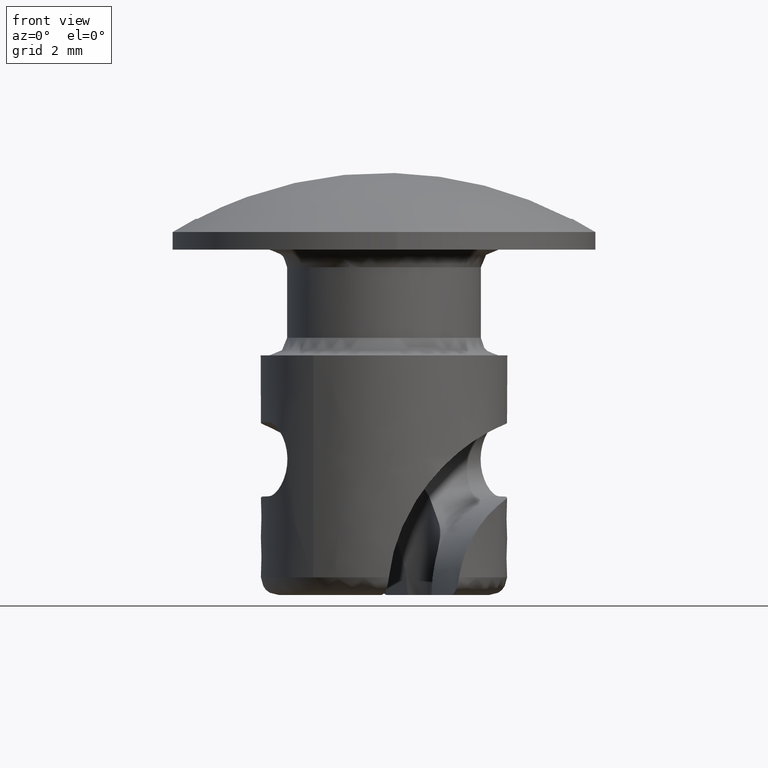
[diagram: clean part render]
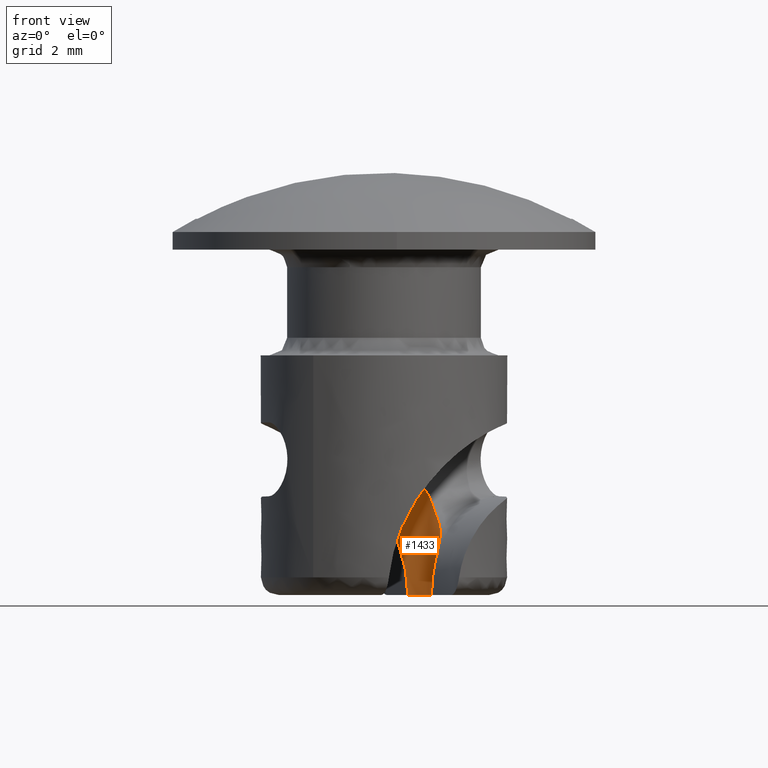
[diagram: same view with one face highlighted and labeled with its STEP entity id]
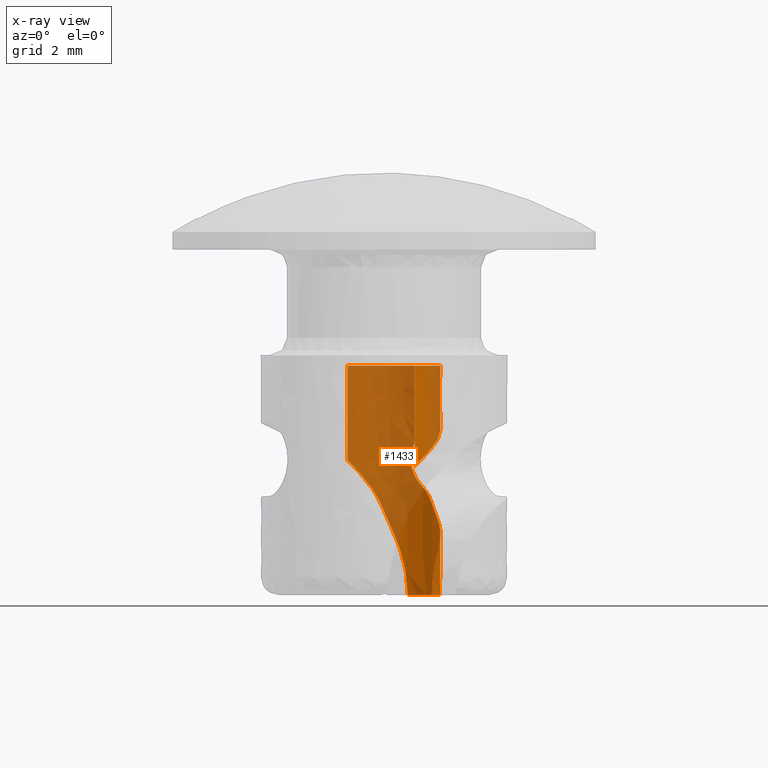
[diagram: x-ray of the same camera — body ghosted, the highlighted face saturated]
A machine part, front view. The second image highlights one B-rep face of the part: STEP entity #1433.
The next image is the same camera in x-ray: the body ghosted, the highlighted face saturated — about 69% of this face is hidden behind the body in this view.
In plain terms, the highlighted face is a freeform B-spline surface patch.
Its self-contained STEP definition (entity closure, byte-faithful):
#910=CARTESIAN_POINT('',(-1.033739476234352,1.221251375898311,-3.137506999999769));
#911=CARTESIAN_POINT('',(-1.002291030257574,1.247848999595607,-3.137506999999769));
#912=CARTESIAN_POINT('',(-0.970455508646392,1.273092593535540,-3.137506999999769));
#913=CARTESIAN_POINT('',(-0.937774442460767,1.297355270146278,-3.137506999999770));
#914=CARTESIAN_POINT('',(-0.904286128788619,1.320604671350618,-3.137506999999769));
#915=CARTESIAN_POINT('',(-0.505655497843827,1.578844599657854,-3.137506999999783));
#916=CARTESIAN_POINT('',(-0.068514503475990,1.686660695392748,-3.137506999999733));
#917=CARTESIAN_POINT('',(0.384210524660905,1.643015494338590,-3.137506999999802));
#918=CARTESIAN_POINT('',(0.790299493612346,1.455871201058595,-3.137506999999757));
#919=CARTESIAN_POINT('',(1.101517933703785,1.160470367565053,-3.137506999999769));
#920=CARTESIAN_POINT('',(1.156115709613701,1.108647653315913,-3.137506999999769));
#921=CARTESIAN_POINT('',(1.207793564334475,1.053492267087045,-3.137506999999768));
#922=CARTESIAN_POINT('',(1.256291436716140,0.995196521698047,-3.137506999999769));
#923=CARTESIAN_POINT('',(1.301360874932333,0.933972423555369,-3.137506999999769));
#924=CARTESIAN_POINT('',(1.455197241448809,0.696566355978591,-3.137506999999770));
#925=CARTESIAN_POINT('',(1.538536463296972,0.506558571350921,-3.137506999999770));
#926=CARTESIAN_POINT('',(1.590290090523801,0.306225197193794,-3.137506999999770));
#927=CARTESIAN_POINT('',(1.609558777662558,0.102004035841254,-3.137506999999767));
#928=CARTESIAN_POINT('',(1.596946236491125,-0.099891495949961,-3.137506999999769));
#929=CARTESIAN_POINT('',(1.578424120931457,-0.396405878625353,-3.137506999999768));
#930=CARTESIAN_POINT('',(1.491123925362530,-0.687895599905734,-3.137506999999773));
#931=CARTESIAN_POINT('',(1.336976364666963,-0.954684060132320,-3.137506999999761));
#932=CARTESIAN_POINT('',(1.124746301922740,-1.178056906478651,-3.137506999999773));
#933=CARTESIAN_POINT('',(0.869590663033496,-1.343265239044995,-3.137506999999769));
#934=CARTESIAN_POINT('',(-1.033657849896345,1.221179811367017,-4.508056443851906));
#935=CARTESIAN_POINT('',(-1.002216108901887,1.247799874367701,-4.508056443851906));
#936=CARTESIAN_POINT('',(-0.970391930797150,1.273070297591273,-4.508056443851906));
#937=CARTESIAN_POINT('',(-0.937712396760142,1.297354110662951,-4.508056443851905));
#938=CARTESIAN_POINT('',(-0.904234972860172,1.320631270029832,-4.508056443851908));
#939=CARTESIAN_POINT('',(-0.505531095276656,1.578931782660965,-4.508056443851893));
#940=CARTESIAN_POINT('',(-0.068511518411141,1.686693767421144,-4.508056443851935));
#941=CARTESIAN_POINT('',(0.384370293367707,1.642470415933063,-4.508056443851880));
#942=CARTESIAN_POINT('',(0.790291381098683,1.455413843000288,-4.508056443851917));
#943=CARTESIAN_POINT('',(1.101745636911038,1.160412587838441,-4.508056443851908));
#944=CARTESIAN_POINT('',(1.156386407481268,1.108654340457289,-4.508056443851908));
#945=CARTESIAN_POINT('',(1.208120456721390,1.053564500989404,-4.508056443851909));
#946=CARTESIAN_POINT('',(1.256643420612292,0.995275777266602,-4.508056443851908));
#947=CARTESIAN_POINT('',(1.301717792751842,0.934030923904008,-4.508056443851908));
#948=CARTESIAN_POINT('',(1.455695463793360,0.696581367790377,-4.508056443851906));
#949=CARTESIAN_POINT('',(1.539115296277995,0.506492962616733,-4.508056443851898));
#950=CARTESIAN_POINT('',(1.590991203398743,0.306089191290416,-4.508056443851907));
#951=CARTESIAN_POINT('',(1.610607524754409,0.101831910515222,-4.508056443851906));
#952=CARTESIAN_POINT('',(1.598103561127591,-0.100124385505679,-4.508056443851905));
#953=CARTESIAN_POINT('',(1.580193565852206,-0.396858770915423,-4.508056443851908));
#954=CARTESIAN_POINT('',(1.490925098721979,-0.687880292957275,-4.508056443851896));
#955=CARTESIAN_POINT('',(1.339844664968499,-0.956470627175908,-4.508056443851923));
#956=CARTESIAN_POINT('',(1.124680380647229,-1.178520007506690,-4.508056443851901));
#957=CARTESIAN_POINT('',(0.869134342994966,-1.342607834958571,-4.508056443851919));
#958=CARTESIAN_POINT('',(-1.033320730760142,1.220644292832976,-5.878605887704042));
#959=CARTESIAN_POINT('',(-1.001864904573230,1.247189698244363,-5.878605887704042));
#960=CARTESIAN_POINT('',(-0.970013684083514,1.272374711756520,-5.878605887704041));
#961=CARTESIAN_POINT('',(-0.937338086583678,1.296591741169187,-5.878605887704042));
#962=CARTESIAN_POINT('',(-0.903838250453008,1.319787419220855,-5.878605887704039));
#963=CARTESIAN_POINT('',(-0.505446560847817,1.577886449109023,-5.878605887704047));
#964=CARTESIAN_POINT('',(-0.068341055992206,1.686124970398120,-5.878605887704032));
#965=CARTESIAN_POINT('',(0.384337058175607,1.643373603164679,-5.878605887704051));
#966=CARTESIAN_POINT('',(0.790618558782833,1.456583812234540,-5.878605887704039));
#967=CARTESIAN_POINT('',(1.101124214065878,1.160444011984402,-5.878605887704041));
#968=CARTESIAN_POINT('',(1.155597745800365,1.108508964588855,-5.878605887704042));
#969=CARTESIAN_POINT('',(1.207123081817195,1.053233995913121,-5.878605887704042));
#970=CARTESIAN_POINT('',(1.255552396182083,0.994934362958839,-5.878605887704041));
#971=CARTESIAN_POINT('',(1.300616202304334,0.933773174245154,-5.878605887704042));
#972=CARTESIAN_POINT('',(1.454159330872482,0.696445579416696,-5.878605887704041));
#973=CARTESIAN_POINT('',(1.537295192199337,0.506651191114805,-5.878605887704047));
#974=CARTESIAN_POINT('',(1.588883159075931,0.306484940537876,-5.878605887704043));
#975=CARTESIAN_POINT('',(1.607302265570131,0.102416422944481,-5.878605887704042));
#976=CARTESIAN_POINT('',(1.593710797195043,-0.099045325157006,-5.878605887704042));
#977=CARTESIAN_POINT('',(1.573042291783623,-0.394710625211723,-5.878605887704036));
#978=CARTESIAN_POINT('',(1.486682628916567,-0.686053948950705,-5.878605887704050));
#979=CARTESIAN_POINT('',(1.327126814191588,-0.948248265862505,-5.878605887704024));
#980=CARTESIAN_POINT('',(1.120808007453514,-1.173125907162332,-5.878605887704044));
#981=CARTESIAN_POINT('',(0.867513122845300,-1.340204659479908,-5.878605887704031));
#982=CARTESIAN_POINT('',(-1.033460212697852,1.221039009399865,-7.249155331556180));
#983=CARTESIAN_POINT('',(-1.002023913969766,1.247640533522966,-7.249155331556180));
#984=CARTESIAN_POINT('',(-0.970201793241820,1.272870918618579,-7.249155331556180));
#985=CARTESIAN_POINT('',(-0.937531210435830,1.297162742278777,-7.249155331556180));
#986=CARTESIAN_POINT('',(-0.904058377536437,1.320373532661892,-7.249155331556180));
#987=CARTESIAN_POINT('',(-0.505533906409684,1.579038904036896,-7.249155331556180));
#988=CARTESIAN_POINT('',(-0.068654676900667,1.685295748879400,-7.249155331556180));
#989=CARTESIAN_POINT('',(0.384413483543271,1.643724478694144,-7.249155331556180));
#990=CARTESIAN_POINT('',(0.789795390165546,1.455054412361894,-7.249155331556179));
#991=CARTESIAN_POINT('',(1.101416232075708,1.160313925284058,-7.249155331556180));
#992=CARTESIAN_POINT('',(1.156067762613458,1.108550137324544,-7.249155331556180));
#993=CARTESIAN_POINT('',(1.207826762838209,1.053477542776792,-7.249155331556180));
#994=CARTESIAN_POINT('',(1.256323991986329,0.995190511158265,-7.249155331556181));
#995=CARTESIAN_POINT('',(1.301312602155030,0.933925091119580,-7.249155331556181));
#996=CARTESIAN_POINT('',(1.455170284307175,0.696623101868890,-7.249155331556180));
#997=CARTESIAN_POINT('',(1.538451457760099,0.506626963063938,-7.249155331556181));
#998=CARTESIAN_POINT('',(1.590090598060947,0.306312482433689,-7.249155331556179));
#999=CARTESIAN_POINT('',(1.609307087717574,0.102170141014249,-7.249155331556181));
#1000=CARTESIAN_POINT('',(1.596577216124385,-0.099619541313306,-7.249155331556181));
#1001=CARTESIAN_POINT('',(1.577894045163236,-0.395970117055778,-7.249155331556180));
#1002=CARTESIAN_POINT('',(1.490387931749507,-0.687215668665688,-7.249155331556180));
#1003=CARTESIAN_POINT('',(1.335955832270376,-0.953593636525123,-7.249155331556179));
#1004=CARTESIAN_POINT('',(1.123613218372571,-1.176478026639614,-7.249155331556179));
#1005=CARTESIAN_POINT('',(0.868390365521309,-1.341325478677619,-7.249155331556179));
#1006=CARTESIAN_POINT('',(-1.033480027463743,1.221094640165421,-7.441282906423957));
#1007=CARTESIAN_POINT('',(-1.002043190836762,1.247692931954506,-7.441282906423957));
#1008=CARTESIAN_POINT('',(-0.970220522530870,1.272944918910906,-7.441282906423957));
#1009=CARTESIAN_POINT('',(-0.937549375409183,1.297196911864057,-7.441282906423957));
#1010=CARTESIAN_POINT('',(-0.904076012155277,1.320466678731964,-7.441282906423957));
#1011=CARTESIAN_POINT('',(-0.505545279284605,1.578530878459925,-7.441282906423957));
#1012=CARTESIAN_POINT('',(-0.068633607999372,1.686967970560927,-7.441282906423958));
#1013=CARTESIAN_POINT('',(0.384295655106033,1.642472859986151,-7.441282906423953));
#1014=CARTESIAN_POINT('',(0.789998000632709,1.455658344622406,-7.441282906423957));
#1015=CARTESIAN_POINT('',(1.101480951835764,1.160361604588598,-7.441282906423956));
#1016=CARTESIAN_POINT('',(1.156095215282714,1.108561540598148,-7.441282906423956));
#1017=CARTESIAN_POINT('',(1.207768740193612,1.053411249005227,-7.441282906423956));
#1018=CARTESIAN_POINT('',(1.256262260497755,0.995129332090994,-7.441282906423956));
#1019=CARTESIAN_POINT('',(1.301368712224178,0.933949663632254,-7.441282906423957));
#1020=CARTESIAN_POINT('',(1.455180537153518,0.696573560349394,-7.441282906423957));
#1021=CARTESIAN_POINT('',(1.538497806852802,0.506583528957673,-7.441282906423965));
#1022=CARTESIAN_POINT('',(1.590110828802829,0.306294318515930,-7.441282906423943));
#1023=CARTESIAN_POINT('',(1.609408211446379,0.102119131847285,-7.441282906423963));
#1024=CARTESIAN_POINT('',(1.596685163830554,-0.099682479074296,-7.441282906423957));
#1025=CARTESIAN_POINT('',(1.578035468909381,-0.396061145334032,-7.441282906423958));
#1026=CARTESIAN_POINT('',(1.490560618253747,-0.687342656175472,-7.441282906423957));
#1027=CARTESIAN_POINT('',(1.336147701747236,-0.953771796246530,-7.441282906423957));
#1028=CARTESIAN_POINT('',(1.123745592648258,-1.176656981260942,-7.441282906423957));
#1029=CARTESIAN_POINT('',(0.868473230982765,-1.341498948474492,-7.441282906423957));
#1030=CARTESIAN_POINT('',(-1.033502369285501,1.221160824089604,-7.633410481291734));
#1031=CARTESIAN_POINT('',(-1.002064845966213,1.247760638931489,-7.633410481291734));
#1032=CARTESIAN_POINT('',(-0.970239538666943,1.273010480964497,-7.633410481291734));
#1033=CARTESIAN_POINT('',(-0.937570495388551,1.297269804705607,-7.633410481291734));
#1034=CARTESIAN_POINT('',(-0.904091542634652,1.320532004925405,-7.633410481291734));
#1035=CARTESIAN_POINT('',(-0.505595333200082,1.578706383944914,-7.633410481291738));
#1036=CARTESIAN_POINT('',(-0.068494538799220,1.686927924393600,-7.633410481291723));
#1037=CARTESIAN_POINT('',(0.384190284935481,1.642807493455150,-7.633410481291741));
#1038=CARTESIAN_POINT('',(0.790125639553905,1.455631550396314,-7.633410481291729));
#1039=CARTESIAN_POINT('',(1.101481764876164,1.160358354503190,-7.633410481291732));
#1040=CARTESIAN_POINT('',(1.156100152861045,1.108556977854591,-7.633410481291732));
#1041=CARTESIAN_POINT('',(1.207793456138509,1.053426387134848,-7.633410481291731));
#1042=CARTESIAN_POINT('',(1.256331173896746,0.995160275826397,-7.633410481291734));
#1043=CARTESIAN_POINT('',(1.301362027606567,0.933926434541144,-7.633410481291731));
#1044=CARTESIAN_POINT('',(1.455312236393991,0.696626989111631,-7.633410481291747));
#1045=CARTESIAN_POINT('',(1.538201981760517,0.506451997342014,-7.633410481291692));
#1046=CARTESIAN_POINT('',(1.590425267090631,0.306314759416393,-7.633410481291767));
#1047=CARTESIAN_POINT('',(1.609370521678895,0.102061953122435,-7.633410481291723));
#1048=CARTESIAN_POINT('',(1.596762325818226,-0.099747276250243,-7.633410481291735));
#1049=CARTESIAN_POINT('',(1.578141859459454,-0.396146995019336,-7.633410481291734));
#1050=CARTESIAN_POINT('',(1.490676718780654,-0.687469004827096,-7.633410481291735));
#1051=CARTESIAN_POINT('',(1.336297202648886,-0.953940668241708,-7.633410481291733));
#1052=CARTESIAN_POINT('',(1.123870882844340,-1.176849599702801,-7.633410481291733));
#1053=CARTESIAN_POINT('',(0.868581372194114,-1.341706076632546,-7.633410481291733));
#1054=CARTESIAN_POINT('',(-1.033527052160834,1.221224397112598,-7.825538056159510));
#1055=CARTESIAN_POINT('',(-1.002088420285674,1.247824195491333,-7.825538056159510));
#1056=CARTESIAN_POINT('',(-0.970262165535193,1.273073581340622,-7.825538056159511));
#1057=CARTESIAN_POINT('',(-0.937591712708313,1.297333647139336,-7.825538056159511));
#1058=CARTESIAN_POINT('',(-0.904112060371259,1.320594757145426,-7.825538056159511));
#1059=CARTESIAN_POINT('',(-0.505598329247333,1.578781124100723,-7.825538056159511));
#1060=CARTESIAN_POINT('',(-0.068498482344272,1.686967242237261,-7.825538056159510));
#1061=CARTESIAN_POINT('',(0.384203340009717,1.642803876985268,-7.825538056159509));
#1062=CARTESIAN_POINT('',(0.790169780073178,1.455704675746256,-7.825538056159508));
#1063=CARTESIAN_POINT('',(1.101495398385985,1.160368639193848,-7.825538056159508));
#1064=CARTESIAN_POINT('',(1.156104570263504,1.108557667178646,-7.825538056159508));
#1065=CARTESIAN_POINT('',(1.207793386980371,1.053417033165451,-7.825538056159508));
#1066=CARTESIAN_POINT('',(1.256300863536461,0.995132069112353,-7.825538056159509));
#1067=CARTESIAN_POINT('',(1.301373157541014,0.933922127800519,-7.825538056159510));
#1068=CARTESIAN_POINT('',(1.455207827712292,0.696542133191049,-7.825538056159511));
#1069=CARTESIAN_POINT('',(1.538471476611425,0.506553881510973,-7.825538056159501));
#1070=CARTESIAN_POINT('',(1.590268659716615,0.306241958746477,-7.825538056159516));
#1071=CARTESIAN_POINT('',(1.609474430519967,0.102041898894823,-7.825538056159513));
#1072=CARTESIAN_POINT('',(1.596817748958870,-0.099793001798618,-7.825538056159512));
#1073=CARTESIAN_POINT('',(1.578201511767926,-0.396211885368057,-7.825538056159512));
#1074=CARTESIAN_POINT('',(1.490801620161554,-0.687590804493188,-7.825538056159510));
#1075=CARTESIAN_POINT('',(1.336413910132607,-0.954079371392030,-7.825538056159510));
#1076=CARTESIAN_POINT('',(1.123999116485203,-1.177032954428933,-7.825538056159510));
#1077=CARTESIAN_POINT('',(0.868699320528067,-1.341906923544389,-7.825538056159510));
#1078=CARTESIAN_POINT('',(-1.033556757783267,1.221301532421196,-8.057352305875547));
#1079=CARTESIAN_POINT('',(-1.002116808943665,1.247901487893660,-8.057352305875547));
#1080=CARTESIAN_POINT('',(-0.970289203594110,1.273149656219615,-8.057352305875547));
#1081=CARTESIAN_POINT('',(-0.937617402031973,1.297412042858728,-8.057352305875547));
#1082=CARTESIAN_POINT('',(-0.904136350774019,1.320669895691681,-8.057352305875547));
#1083=CARTESIAN_POINT('',(-0.505606724907917,1.578892021733397,-8.057352305875543));
#1084=CARTESIAN_POINT('',(-0.068487862212998,1.686979150874881,-8.057352305875558));
#1085=CARTESIAN_POINT('',(0.384209352984317,1.642830612638202,-8.057352305875533));
#1086=CARTESIAN_POINT('',(0.790228724186458,1.455786759906318,-8.057352305875551));
#1087=CARTESIAN_POINT('',(1.101506449344455,1.160376631924590,-8.057352305875545));
#1088=CARTESIAN_POINT('',(1.156110006010365,1.108558208913985,-8.057352305875545));
#1089=CARTESIAN_POINT('',(1.207793940754604,1.053408563997390,-8.057352305875545));
#1090=CARTESIAN_POINT('',(1.256297200447144,0.995120750387712,-8.057352305875543));
#1091=CARTESIAN_POINT('',(1.301370140656044,0.933902655298596,-8.057352305875547));
#1092=CARTESIAN_POINT('',(1.455208579465357,0.696530127890172,-8.057352305875543));
#1093=CARTESIAN_POINT('',(1.538551150978679,0.506529171737444,-8.057352305875556));
#1094=CARTESIAN_POINT('',(1.590272948110348,0.306226575033715,-8.057352305875536));
#1095=CARTESIAN_POINT('',(1.609516960137658,0.102017636701260,-8.057352305875559));
#1096=CARTESIAN_POINT('',(1.596886364416321,-0.099852547777938,-8.057352305875547));
#1097=CARTESIAN_POINT('',(1.578181050303182,-0.396284169728073,-8.057352305875563));
#1098=CARTESIAN_POINT('',(1.491054474769199,-0.687741492276609,-8.057352305875529));
#1099=CARTESIAN_POINT('',(1.336496524213904,-0.954253118943420,-8.057352305875556));
#1100=CARTESIAN_POINT('',(1.124169949346802,-1.177250678682559,-8.057352305875543));
#1101=CARTESIAN_POINT('',(0.868841069136211,-1.342149819595127,-8.057352305875547));
#1102=CARTESIAN_POINT('',(-1.033589883631324,1.221372077659560,-8.289166555591581));
#1103=CARTESIAN_POINT('',(-1.002148620112965,1.247971101750242,-8.289166555591581));
#1104=CARTESIAN_POINT('',(-0.970319574784198,1.273215184581724,-8.289166555591581));
#1105=CARTESIAN_POINT('',(-0.937646655483791,1.297481134423039,-8.289166555591583));
#1106=CARTESIAN_POINT('',(-0.904163993590256,1.320730114881333,-8.289166555591581));
#1107=CARTESIAN_POINT('',(-0.505622467993138,1.579009399562474,-8.289166555591585));
#1108=CARTESIAN_POINT('',(-0.068478165867498,1.686778990193849,-8.289166555591580));
#1109=CARTESIAN_POINT('',(0.384193939683595,1.642998514887941,-8.289166555591585));
#1110=CARTESIAN_POINT('',(0.790256944719172,1.455763073594393,-8.289166555591580));
#1111=CARTESIAN_POINT('',(1.101512162453745,1.160382755770092,-8.289166555591581));
#1112=CARTESIAN_POINT('',(1.156114356819373,1.108560445888351,-8.289166555591581));
#1113=CARTESIAN_POINT('',(1.207797120056852,1.053408326275438,-8.289166555591581));
#1114=CARTESIAN_POINT('',(1.256298581654498,0.995113908612959,-8.289166555591583));
#1115=CARTESIAN_POINT('',(1.301371757017144,0.933896363978542,-8.289166555591583));
#1116=CARTESIAN_POINT('',(1.455210221727137,0.696500139857294,-8.289166555591585));
#1117=CARTESIAN_POINT('',(1.538549970649293,0.506521970705015,-8.289166555591576));
#1118=CARTESIAN_POINT('',(1.590288039622394,0.306187134434886,-8.289166555591594));
#1119=CARTESIAN_POINT('',(1.609571630073367,0.101994815120540,-8.289166555591576));
#1120=CARTESIAN_POINT('',(1.596907938487904,-0.099871344687006,-8.289166555591583));
#1121=CARTESIAN_POINT('',(1.578384430518723,-0.396336379636149,-8.289166555591574));
#1122=CARTESIAN_POINT('',(1.491049732746661,-0.687889400580056,-8.289166555591587));
#1123=CARTESIAN_POINT('',(1.336626401250453,-0.954319600096499,-8.289166555591580));
#1124=CARTESIAN_POINT('',(1.124315050876199,-1.177482269038382,-8.289166555591583));
#1125=CARTESIAN_POINT('',(0.868995972417152,-1.342384424002534,-8.289166555591581));
#1126=CARTESIAN_POINT('',(-1.033624417383684,1.221430892912782,-8.520980805307620));
#1127=CARTESIAN_POINT('',(-1.002181944193127,1.248027735891266,-8.520980805307620));
#1128=CARTESIAN_POINT('',(-0.970351759133121,1.273270587928998,-8.520980805307620));
#1129=CARTESIAN_POINT('',(-0.937677557409445,1.297532810482919,-8.520980805307620));
#1130=CARTESIAN_POINT('',(-0.904193875235029,1.320781985985872,-8.520980805307620));
#1131=CARTESIAN_POINT('',(-0.505637486126515,1.579011897859529,-8.520980805307621));
#1132=CARTESIAN_POINT('',(-0.068489869315854,1.686846689913340,-8.520980805307620));
#1133=CARTESIAN_POINT('',(0.384203381037347,1.642925759928811,-8.520980805307620));
#1134=CARTESIAN_POINT('',(0.790264843561123,1.455839482801159,-8.520980805307618));
#1135=CARTESIAN_POINT('',(1.101512273935439,1.160398947827554,-8.520980805307618));
#1136=CARTESIAN_POINT('',(1.156113271231656,1.108574344970349,-8.520980805307618));
#1137=CARTESIAN_POINT('',(1.207794692585164,1.053419056987812,-8.520980805307618));
#1138=CARTESIAN_POINT('',(1.256295575590683,0.995122980248744,-8.520980805307621));
#1139=CARTESIAN_POINT('',(1.301367760617121,0.933901561489267,-8.520980805307621));
#1140=CARTESIAN_POINT('',(1.455206620053330,0.696502158066980,-8.520980805307621));
#1141=CARTESIAN_POINT('',(1.538547414146047,0.506508835718335,-8.520980805307621));
#1142=CARTESIAN_POINT('',(1.590297261706392,0.306191425525457,-8.520980805307623));
#1143=CARTESIAN_POINT('',(1.609556641973648,0.101987264446457,-8.520980805307621));
#1144=CARTESIAN_POINT('',(1.596917249189347,-0.099886558698826,-8.520980805307621));
#1145=CARTESIAN_POINT('',(1.578417975453687,-0.396385372172035,-8.520980805307616));
#1146=CARTESIAN_POINT('',(1.490952595593727,-0.687790118043466,-8.520980805307628));
#1147=CARTESIAN_POINT('',(1.336803473063133,-0.954521860600834,-8.520980805307612));
#1148=CARTESIAN_POINT('',(1.124394230184238,-1.177591957677104,-8.520980805307625));
#1149=CARTESIAN_POINT('',(0.869121040086709,-1.342563869327385,-8.520980805307621));
#1150=CARTESIAN_POINT('',(-1.033697115175358,1.221554628448015,-9.002843703538343));
#1151=CARTESIAN_POINT('',(-1.002252104572134,1.248147332883286,-9.002843703538343));
#1152=CARTESIAN_POINT('',(-0.970419905116283,1.273385466914617,-9.002843703538343));
#1153=CARTESIAN_POINT('',(-0.937742476163521,1.297644152926377,-9.002843703538341));
#1154=CARTESIAN_POINT('',(-0.904257598646523,1.320887741446029,-9.002843703538343));
#1155=CARTESIAN_POINT('',(-0.505661833022593,1.579078573185975,-9.002843703538341));
#1156=CARTESIAN_POINT('',(-0.068547530392140,1.686805450132246,-9.002843703538348));
#1157=CARTESIAN_POINT('',(0.384267410970424,1.642991939283475,-9.002843703538330));
#1158=CARTESIAN_POINT('',(0.790246433306811,1.455873037494528,-9.002843703538339));
#1159=CARTESIAN_POINT('',(1.101504399547237,1.160443671183803,-9.002843703538341));
#1160=CARTESIAN_POINT('',(1.156104197195250,1.108613485792002,-9.002843703538341));
#1161=CARTESIAN_POINT('',(1.207784565489768,1.053450347991283,-9.002843703538339));
#1162=CARTESIAN_POINT('',(1.256284865031876,0.995145151358178,-9.002843703538343));
#1163=CARTESIAN_POINT('',(1.301356403824933,0.933917991760102,-9.002843703538343));
#1164=CARTESIAN_POINT('',(1.455192742693800,0.696490394273804,-9.002843703538350));
#1165=CARTESIAN_POINT('',(1.538537875083994,0.506492335392084,-9.002843703538332));
#1166=CARTESIAN_POINT('',(1.590292575665770,0.306180981562093,-9.002843703538352));
#1167=CARTESIAN_POINT('',(1.609562250655128,0.101964366261393,-9.002843703538346));
#1168=CARTESIAN_POINT('',(1.596947096746939,-0.099917584139124,-9.002843703538344));
#1169=CARTESIAN_POINT('',(1.578386980974471,-0.396427233652578,-9.002843703538362));
#1170=CARTESIAN_POINT('',(1.491083907691982,-0.687813179060015,-9.002843703538286));
#1171=CARTESIAN_POINT('',(1.336927478504931,-0.954752560943106,-9.002843703538423));
#1172=CARTESIAN_POINT('',(1.124619758400334,-1.177836639376434,-9.002843703538318));
#1173=CARTESIAN_POINT('',(0.869383709478124,-1.342933171743165,-9.002843703538344));
#1174=CARTESIAN_POINT('',(-1.033769695567772,1.221631501155459,-9.484706601769060));
#1175=CARTESIAN_POINT('',(-1.002322275503844,1.248218746885767,-9.484706601769060));
#1176=CARTESIAN_POINT('',(-0.970487499437462,1.273450401516809,-9.484706601769060));
#1177=CARTESIAN_POINT('',(-0.937807872447767,1.297705082827563,-9.484706601769060));
#1178=CARTESIAN_POINT('',(-0.904320153653026,1.320940701476531,-9.484706601769060));
#1179=CARTESIAN_POINT('',(-0.505699377027952,1.579091334110150,-9.484706601769064));
#1180=CARTESIAN_POINT('',(-0.068537538085577,1.686678651168910,-9.484706601769052));
#1181=CARTESIAN_POINT('',(0.384265776046590,1.642917771733518,-9.484706601769068));
#1182=CARTESIAN_POINT('',(0.790316491734057,1.456007700004868,-9.484706601769059));
#1183=CARTESIAN_POINT('',(1.101497703029222,1.160495225950831,-9.484706601769064));
#1184=CARTESIAN_POINT('',(1.156091988288745,1.108668640911162,-9.484706601769066));
#1185=CARTESIAN_POINT('',(1.207767950261052,1.053511489259980,-9.484706601769068));
#1186=CARTESIAN_POINT('',(1.256263940768498,0.995214786384423,-9.484706601769075));
#1187=CARTESIAN_POINT('',(1.301333331701977,0.933987782882452,-9.484706601769075));
#1188=CARTESIAN_POINT('',(1.455165071320302,0.696587008455613,-9.484706601769062));
#1189=CARTESIAN_POINT('',(1.538502859603669,0.506578432141452,-9.484706601769094));
#1190=CARTESIAN_POINT('',(1.590246312131167,0.306240438912137,-9.484706601769055));
#1191=CARTESIAN_POINT('',(1.609506778998079,0.102029682376926,-9.484706601769064));
#1192=CARTESIAN_POINT('',(1.596881629061389,-0.099858223149469,-9.484706601769066));
#1193=CARTESIAN_POINT('',(1.578352286690912,-0.396352449417312,-9.484706601769062));
#1194=CARTESIAN_POINT('',(1.491039884300986,-0.687853684935053,-9.484706601769094));
#1195=CARTESIAN_POINT('',(1.336825008939699,-0.954550730608989,-9.484706601769030));
#1196=CARTESIAN_POINT('',(1.124655829952594,-1.177941076216510,-9.484706601769080));
#1197=CARTESIAN_POINT('',(0.869461137574699,-1.343051809034620,-9.484706601769064));
#1198=CARTESIAN_POINT('',(-1.033827541973282,1.221730854845431,-9.966569499999782));
#1199=CARTESIAN_POINT('',(-1.002378227080948,1.248314696223563,-9.966569499999782));
#1200=CARTESIAN_POINT('',(-0.970541027761984,1.273543884929457,-9.966569499999782));
#1201=CARTESIAN_POINT('',(-0.937860373852133,1.297793889008691,-9.966569499999782));
#1202=CARTESIAN_POINT('',(-0.904369464339057,1.321028484138045,-9.966569499999782));
#1203=CARTESIAN_POINT('',(-0.505740743650981,1.579120774604259,-9.966569499999777));
#1204=CARTESIAN_POINT('',(-0.068509751107705,1.686761596604975,-9.966569499999796));
#1205=CARTESIAN_POINT('',(0.384204340595255,1.642884301267757,-9.966569499999757));
#1206=CARTESIAN_POINT('',(0.790283817343350,1.455897606029601,-9.966569499999798));
#1207=CARTESIAN_POINT('',(1.101502086120677,1.160472390088810,-9.966569499999782));
#1208=CARTESIAN_POINT('',(1.156098781931035,1.108651217472932,-9.966569499999782));
#1209=CARTESIAN_POINT('',(1.207775246407540,1.053498211430125,-9.966569499999785));
#1210=CARTESIAN_POINT('',(1.256271070133397,0.995203629711435,-9.966569499999785));
#1211=CARTESIAN_POINT('',(1.301338703100959,0.933982380145189,-9.966569499999793));
#1212=CARTESIAN_POINT('',(1.455164013760803,0.696582994243871,-9.966569499999787));
#1213=CARTESIAN_POINT('',(1.538498581529576,0.506582627898205,-9.966569499999807));
#1214=CARTESIAN_POINT('',(1.590240687390743,0.306255461017883,-9.966569499999778));
#1215=CARTESIAN_POINT('',(1.609500760527072,0.102042054001040,-9.966569499999791));
#1216=CARTESIAN_POINT('',(1.596877227800341,-0.099844452550289,-9.966569499999791));
#1217=CARTESIAN_POINT('',(1.578337767794602,-0.396356807837455,-9.966569499999800));
#1218=CARTESIAN_POINT('',(1.491027033897035,-0.687779648046267,-9.966569499999769));
#1219=CARTESIAN_POINT('',(1.336858040753995,-0.954642160152640,-9.966569499999798));
#1220=CARTESIAN_POINT('',(1.124649092599827,-1.177907403383225,-9.966569499999782));
#1221=CARTESIAN_POINT('',(0.869515237426651,-1.343113780243607,-9.966569499999785));
#1222=B_SPLINE_SURFACE_WITH_KNOTS('',5,3,((#910,#934,#958,#982,#1006,#1030,#1054,#1078,#1102,#1126,#1150,#1174,#1198),(#911,#935,#959,#983,#1007,#1031,#1055,#1079,#1103,#1127,#1151,#1175,#1199),(#912,#936,#960,#984,#1008,#1032,#1056,#1080,#1104,#1128,#1152,#1176,#1200),(#913,#937,#961,#985,#1009,#1033,#1057,#1081,#1105,#1129,#1153,#1177,#1201),(#914,#938,#962,#986,#1010,#1034,#1058,#1082,#1106,#1130,#1154,#1178,#1202),(#915,#939,#963,#987,#1011,#1035,#1059,#1083,#1107,#1131,#1155,#1179,#1203),(#916,#940,#964,#988,#1012,#1036,#1060,#1084,#1108,#1132,#1156,#1180,#1204),(#917,#941,#965,#989,#1013,#1037,#1061,#1085,#1109,#1133,#1157,#1181,#1205),(#918,#942,#966,#990,#1014,#1038,#1062,#1086,#1110,#1134,#1158,#1182,#1206),(#919,#943,#967,#991,#1015,#1039,#1063,#1087,#1111,#1135,#1159,#1183,#1207),(#920,#944,#968,#992,#1016,#1040,#1064,#1088,#1112,#1136,#1160,#1184,#1208),(#921,#945,#969,#993,#1017,#1041,#1065,#1089,#1113,#1137,#1161,#1185,#1209),(#922,#946,#970,#994,#1018,#1042,#1066,#1090,#1114,#1138,#1162,#1186,#1210),(#923,#947,#971,#995,#1019,#1043,#1067,#1091,#1115,#1139,#1163,#1187,#1211),(#924,#948,#972,#996,#1020,#1044,#1068,#1092,#1116,#1140,#1164,#1188,#1212),(#925,#949,#973,#997,#1021,#1045,#1069,#1093,#1117,#1141,#1165,#1189,#1213),(#926,#950,#974,#998,#1022,#1046,#1070,#1094,#1118,#1142,#1166,#1190,#1214),(#927,#951,#975,#999,#1023,#1047,#1071,#1095,#1119,#1143,#1167,#1191,#1215),(#928,#952,#976,#1000,#1024,#1048,#1072,#1096,#1120,#1144,#1168,#1192,#1216),(#929,#953,#977,#1001,#1025,#1049,#1073,#1097,#1121,#1145,#1169,#1193,#1217),(#930,#954,#978,#1002,#1026,#1050,#1074,#1098,#1122,#1146,#1170,#1194,#1218),(#931,#955,#979,#1003,#1027,#1051,#1075,#1099,#1123,#1147,#1171,#1195,#1219),(#932,#956,#980,#1004,#1028,#1052,#1076,#1100,#1124,#1148,#1172,#1196,#1220),(#933,#957,#981,#1005,#1029,#1053,#1077,#1101,#1125,#1149,#1173,#1197,#1221)),.UNSPECIFIED.,.F.,.F.,.U.,(6,4,5,4,5,6),(4,3,3,3,4),(0.0,0.205939210733247,2.389074181654776,2.772064944880955,3.811816254426509,5.338842574810823),(0.0,4.111648331556411,4.688031056159741,5.383473805307850,6.829062500000021),.UNSPECIFIED.);
#1223=CARTESIAN_POINT('',(1.600000000000000,0.0,-3.300006999999770));
#1224=VERTEX_POINT('',#1223);
#1225=CARTESIAN_POINT('',(-1.033240125969619,1.221644314290522,-3.300006999999770));
#1226=VERTEX_POINT('',#1225);
#1227=CARTESIAN_POINT('',(1.600000000000000,0.0,-3.300006999999770));
#1228=CARTESIAN_POINT('',(1.600000000000000,1.600000000000000,-3.300006999999770));
#1229=CARTESIAN_POINT('',(0.0,1.600000000000000,-3.300006999999770));
#1230=CARTESIAN_POINT('',(-0.585893904242109,1.600000000000000,-3.300006999999770));
#1231=CARTESIAN_POINT('',(-1.033240125969619,1.221644314290521,-3.300006999999770));
#1239=(BOUNDED_CURVE()B_SPLINE_CURVE(2,(#1227,#1228,#1229,#1230,#1231),.UNSPECIFIED.,.F.,.U.)B_SPLINE_CURVE_WITH_KNOTS((3,2,3),(0.500000000000000,0.750000000000000,0.862414630688055),.UNSPECIFIED.)CURVE()GEOMETRIC_REPRESENTATION_ITEM()RATIONAL_B_SPLINE_CURVE((1.0,0.707106781186548,1.0,0.868298067904200,0.855037928268022))REPRESENTATION_ITEM(''));
#1240=EDGE_CURVE('',#1224,#1226,#1239,.T.);
#1241=ORIENTED_EDGE('',*,*,#1240,.T.);
#1242=CARTESIAN_POINT('',(-1.032951783429863,1.221303177774129,-5.982206114941556));
#1243=VERTEX_POINT('',#1242);
#1244=CARTESIAN_POINT('',(-1.033240125969619,1.221644314290522,-3.300006999999770));
#1245=CARTESIAN_POINT('',(-1.032951783429863,1.221303177774129,-5.982206114941556));
#1246=QUASI_UNIFORM_CURVE('',1,(#1244,#1245),.UNSPECIFIED.,.F.,.U.);
#1247=EDGE_CURVE('',#1226,#1243,#1246,.T.);
#1248=ORIENTED_EDGE('',*,*,#1247,.T.);
#1249=CARTESIAN_POINT('',(0.179146283057086,1.589939184140965,-7.825538056159511));
#1250=VERTEX_POINT('',#1249);
#1251=CARTESIAN_POINT('',(-1.032951783429863,1.221303177774129,-5.982206114941556));
#1252=CARTESIAN_POINT('',(-0.956331492855666,1.286038256178465,-6.060779807606847));
#1253=CARTESIAN_POINT('',(-0.769497809840069,1.415131216104327,-6.251565355728372));
#1254=CARTESIAN_POINT('',(-0.480785954483158,1.535983163271562,-6.572771783234457));
#1255=CARTESIAN_POINT('',(-0.254224729967324,1.582209450382624,-6.889760992936836));
#1256=CARTESIAN_POINT('',(-0.111269769452284,1.596912522870671,-7.163768759939777));
#1257=CARTESIAN_POINT('',(-0.006887055863909,1.600881626273672,-7.400346348276027));
#1258=CARTESIAN_POINT('',(0.087769604016521,1.598755851937334,-7.627736900984001));
#1259=CARTESIAN_POINT('',(0.154352988078503,1.592331553108378,-7.771868975963489));
#1260=CARTESIAN_POINT('',(0.179146283057086,1.589939184140965,-7.825538056159511));
#1261=B_SPLINE_CURVE_WITH_KNOTS('',3,(#1251,#1252,#1253,#1254,#1255,#1256,#1257,#1258,#1259,#1260),.UNSPECIFIED.,.F.,.U.,(4,1,1,1,1,1,1,4),(0.400370604954878,0.500282934787405,0.632334991929249,0.750367116302488,0.806495910468409,0.875144949821109,0.953500097510714,0.999986089755612),.UNSPECIFIED.);
#1262=EDGE_CURVE('',#1243,#1250,#1261,.T.);
#1263=ORIENTED_EDGE('',*,*,#1262,.T.);
#1264=CARTESIAN_POINT('',(0.674474964545780,1.450890596220460,-9.800003499999901));
#1265=VERTEX_POINT('',#1264);
#1266=CARTESIAN_POINT('',(0.674474964545780,1.450890596220460,-9.800003499999901));
#1267=CARTESIAN_POINT('',(0.674770534148072,1.450753194889497,-9.626548450510439));
#1268=CARTESIAN_POINT('',(0.663026144386739,1.456368461670306,-9.455316106804698));
#1269=CARTESIAN_POINT('',(0.617655779181693,1.476182272868676,-9.116777297503880));
#1270=CARTESIAN_POINT('',(0.584061754898252,1.490300076122895,-8.949460955990006));
#1271=CARTESIAN_POINT('',(0.519022249659651,1.513653367506880,-8.700897763433479));
#1272=CARTESIAN_POINT('',(0.494830097430398,1.521808935010159,-8.618240069977768));
#1273=CARTESIAN_POINT('',(0.442136022141756,1.537945056861394,-8.454695968240905));
#1274=CARTESIAN_POINT('',(0.413693492038826,1.545909366247835,-8.373942856513443));
#1275=CARTESIAN_POINT('',(0.322603427060242,1.568387491942354,-8.134443554172066));
#1276=CARTESIAN_POINT('',(0.254224425629019,1.581479759834216,-7.978442010776877));
#1277=CARTESIAN_POINT('',(0.179146283057086,1.589939184140965,-7.825538056159511));
#1278=B_SPLINE_CURVE_WITH_KNOTS('',3,(#1266,#1267,#1268,#1269,#1270,#1271,#1272,#1273,#1274,#1275,#1276,#1277),.UNSPECIFIED.,.F.,.U.,(4,2,2,2,2,4),(0.0,0.250000000000000,0.500000000000000,0.625000000000000,0.750000000000000,1.0),.UNSPECIFIED.);
#1279=EDGE_CURVE('',#1265,#1250,#1278,.T.);
#1280=ORIENTED_EDGE('',*,*,#1279,.F.);
#1281=CARTESIAN_POINT('',(1.348526415986928,-0.861090300366407,-9.800006999999789));
#1282=VERTEX_POINT('',#1281);
#1283=CARTESIAN_POINT('',(1.348526415986928,-0.861090300366407,-9.800006999999789));
#1284=CARTESIAN_POINT('',(1.739259532917635,-0.249175464538245,-9.800006305165091));
#1285=CARTESIAN_POINT('',(1.536049336107075,0.447830812969475,-9.800005249999845));
#1286=CARTESIAN_POINT('',(1.332839139296516,1.144837090477195,-9.800004194834598));
#1287=CARTESIAN_POINT('',(0.674474964545780,1.450890596220460,-9.800003499999901));
#1295=(BOUNDED_CURVE()B_SPLINE_CURVE(2,(#1283,#1284,#1285,#1286,#1287),.UNSPECIFIED.,.F.,.U.)B_SPLINE_CURVE_WITH_KNOTS((3,2,3),(0.0,0.500000000000000,1.0),.UNSPECIFIED.)CURVE()GEOMETRIC_REPRESENTATION_ITEM()RATIONAL_B_SPLINE_CURVE((1.0,0.910633829824486,1.0,0.910633829824486,1.0))REPRESENTATION_ITEM(''));
#1296=EDGE_CURVE('',#1282,#1265,#1295,.T.);
#1297=ORIENTED_EDGE('',*,*,#1296,.F.);
#1298=CARTESIAN_POINT('',(1.526739714262565,-0.478608237385708,-8.520980805307620));
#1299=VERTEX_POINT('',#1298);
#1300=CARTESIAN_POINT('',(1.348526415986928,-0.861090300366407,-9.800006999999789));
#1301=CARTESIAN_POINT('',(1.348216878263476,-0.861575057628850,-9.684480202719346));
#1302=CARTESIAN_POINT('',(1.352707110030773,-0.854672807549093,-9.570560551882979));
#1303=CARTESIAN_POINT('',(1.370351731888041,-0.826086112874334,-9.345851547787540));
#1304=CARTESIAN_POINT('',(1.383519998961992,-0.804411827625889,-9.235061851465098));
#1305=CARTESIAN_POINT('',(1.408719474774443,-0.758822073012819,-9.071444511098264));
#1306=CARTESIAN_POINT('',(1.418069932805433,-0.741329285476151,-9.017089868608604));
#1307=CARTESIAN_POINT('',(1.438064287306668,-0.701756759566075,-8.910550163466356));
#1308=CARTESIAN_POINT('',(1.448657629700481,-0.679781926301323,-8.858581550459556));
#1309=CARTESIAN_POINT('',(1.481458788396997,-0.606736702840804,-8.706707380556868));
#1310=CARTESIAN_POINT('',(1.504778748275995,-0.548662777793634,-8.610790856729183));
#1311=CARTESIAN_POINT('',(1.526739714262565,-0.478608237385708,-8.520980805307620));
#1312=B_SPLINE_CURVE_WITH_KNOTS('',3,(#1300,#1301,#1302,#1303,#1304,#1305,#1306,#1307,#1308,#1309,#1310,#1311),.UNSPECIFIED.,.F.,.U.,(4,2,2,2,2,4),(0.0,0.249999999999999,0.499999999999999,0.624999999999998,0.749999999999998,1.0),.UNSPECIFIED.);
#1313=EDGE_CURVE('',#1282,#1299,#1312,.T.);
#1314=ORIENTED_EDGE('',*,*,#1313,.T.);
#1315=CARTESIAN_POINT('',(1.375532340914670,0.817219448507184,-7.249155331556179));
#1316=VERTEX_POINT('',#1315);
#1317=CARTESIAN_POINT('',(1.526739714262565,-0.478608237385708,-8.520980805307620));
#1318=CARTESIAN_POINT('',(1.534598698381523,-0.452216691681615,-8.488484219613319));
#1319=CARTESIAN_POINT('',(1.550972795499307,-0.397216558109040,-8.420770844332960));
#1320=CARTESIAN_POINT('',(1.572098331513565,-0.303036878332996,-8.321286650024375));
#1321=CARTESIAN_POINT('',(1.589291576036535,-0.196343897300010,-8.218167828320649));
#1322=CARTESIAN_POINT('',(1.599826219686141,-0.076495053375546,-8.112058477597694));
#1323=CARTESIAN_POINT('',(1.601032167850710,0.055679061002791,-8.002561780830870));
#1324=CARTESIAN_POINT('',(1.587949393116733,0.224052276090297,-7.872101633619878));
#1325=CARTESIAN_POINT('',(1.554710238318745,0.392780076679647,-7.741088111424480));
#1326=CARTESIAN_POINT('',(1.504974294429403,0.548240552564792,-7.608241299461049));
#1327=CARTESIAN_POINT('',(1.459904233661529,0.657652936928349,-7.490945116659106));
#1328=CARTESIAN_POINT('',(1.415238592359940,0.748443107581132,-7.373369907265286));
#1329=CARTESIAN_POINT('',(1.388458537497675,0.794829647302833,-7.289592902975184));
#1330=CARTESIAN_POINT('',(1.375532340914670,0.817219448507184,-7.249155331556179));
#1331=B_SPLINE_CURVE_WITH_KNOTS('',3,(#1317,#1318,#1319,#1320,#1321,#1322,#1323,#1324,#1325,#1326,#1327,#1328,#1329,#1330),.UNSPECIFIED.,.F.,.U.,(4,1,1,1,1,1,1,1,1,1,1,4),(0.000131881125767,0.068866878515845,0.143363208614654,0.223654033626661,0.309870892313034,0.402119732218484,0.500486758610866,0.654055003192450,0.750354373535162,0.839671700631887,0.922611605896972,0.999997947370645),.UNSPECIFIED.);
#1332=EDGE_CURVE('',#1299,#1316,#1331,.T.);
#1333=ORIENTED_EDGE('',*,*,#1332,.T.);
#1334=CARTESIAN_POINT('',(1.101501614419764,1.160471539262074,-6.742628828549780));
#1335=VERTEX_POINT('',#1334);
#1336=CARTESIAN_POINT('',(1.375532340914670,0.817219448507184,-7.249155331556179));
#1337=CARTESIAN_POINT('',(1.359146180062312,0.844704146444952,-7.194817578703452));
#1338=CARTESIAN_POINT('',(1.316707863293873,0.911602442468612,-7.074143660437675));
#1339=CARTESIAN_POINT('',(1.231290340059823,1.028159067698840,-6.900060788815278));
#1340=CARTESIAN_POINT('',(1.144721335441311,1.116411409382277,-6.795053762757239));
#1341=CARTESIAN_POINT('',(1.101501614419764,1.160471539262074,-6.742628828549780));
#1342=B_SPLINE_CURVE_WITH_KNOTS('',3,(#1336,#1337,#1338,#1339,#1340,#1341),.UNSPECIFIED.,.F.,.U.,(4,1,1,4),(0.540602078850273,0.669380834023350,0.834937825832045,1.0),.UNSPECIFIED.);
#1343=EDGE_CURVE('',#1316,#1335,#1342,.T.);
#1344=ORIENTED_EDGE('',*,*,#1343,.T.);
#1345=CARTESIAN_POINT('',(1.596881021500380,-0.099851301597257,-5.137821102214771));
#1346=VERTEX_POINT('',#1345);
#1347=CARTESIAN_POINT('',(1.596881021500380,-0.099851301597257,-5.137821102214771));
#1348=CARTESIAN_POINT('',(1.600423803061879,-0.043153700768923,-5.095496010666895));
#1349=CARTESIAN_POINT('',(1.601111287257406,0.016239636581537,-5.058424969962071));
#1350=CARTESIAN_POINT('',(1.596570533917190,0.109054237490353,-5.010655654147685));
#1351=CARTESIAN_POINT('',(1.594127235896241,0.140628447335976,-4.996043508955073));
#1352=CARTESIAN_POINT('',(1.587118476828353,0.205096742666411,-4.969558211725092));
#1353=CARTESIAN_POINT('',(1.582522216731613,0.238169030872550,-4.957630684286716));
#1354=CARTESIAN_POINT('',(1.565276666729241,0.338287206723056,-4.926674302021990));
#1355=CARTESIAN_POINT('',(1.549462514296479,0.404868350456069,-4.912769592178051));
#1356=CARTESIAN_POINT('',(1.518796877052915,0.504365977662635,-4.902027826863985));
#1357=CARTESIAN_POINT('',(1.507414130944585,0.537470442601069,-4.900145489869219));
#1358=CARTESIAN_POINT('',(1.482194175381138,0.603544869073621,-4.899941138559335));
#1359=CARTESIAN_POINT('',(1.468398350895612,0.636351340537720,-4.901649441561872));
#1360=CARTESIAN_POINT('',(1.424568496965914,0.731714437624450,-4.911953705427115));
#1361=CARTESIAN_POINT('',(1.391754862422698,0.792168821001610,-4.925656728484262));
#1362=CARTESIAN_POINT('',(1.337662055541686,0.878471304431825,-4.956266644431584));
#1363=CARTESIAN_POINT('',(1.318991996303837,0.906212851441101,-4.968068861406831));
#1364=CARTESIAN_POINT('',(1.280969834805642,0.959206391790498,-4.994441486676806));
#1365=CARTESIAN_POINT('',(1.261551603140843,0.984563335508105,-5.009049027798542));
#1366=CARTESIAN_POINT('',(1.202318554122994,1.057473030969759,-5.057011567573509));
#1367=CARTESIAN_POINT('',(1.161233675687428,1.102097795823362,-5.094816599826530));
#1368=CARTESIAN_POINT('',(1.080700150348556,1.181175171501441,-5.178663656336297));
#1369=CARTESIAN_POINT('',(1.040938123083250,1.216050019113653,-5.224884476072701));
#1370=CARTESIAN_POINT('',(0.983386602355882,1.262326577047199,-5.301054999479422));
#1371=CARTESIAN_POINT('',(0.964615589535997,1.276685353025268,-5.327538266200032));
#1372=CARTESIAN_POINT('',(0.928742935156203,1.303015597171168,-5.381929846119694));
#1373=CARTESIAN_POINT('',(0.911555089376456,1.315056634750617,-5.409948488035919));
#1374=CARTESIAN_POINT('',(0.862689131519665,1.348050497456276,-5.496628554478193));
#1375=CARTESIAN_POINT('',(0.833635880369814,1.365920244976024,-5.557878615654080));
#1376=CARTESIAN_POINT('',(0.786273364658477,1.393725977092529,-5.689068142875031));
#1377=CARTESIAN_POINT('',(0.768938645283525,1.403139909623285,-5.756529738279157));
#1378=CARTESIAN_POINT('',(0.754545230881723,1.410903540622519,-5.860918188371757));
#1379=CARTESIAN_POINT('',(0.751692538952735,1.412416122810501,-5.896531711413771));
#1380=CARTESIAN_POINT('',(0.750264974748797,1.413176811313811,-5.967267929018422));
#1381=CARTESIAN_POINT('',(0.753031699784619,1.411717961100225,-6.037475069271246));
#1382=CARTESIAN_POINT('',(0.763806014580773,1.405931996858381,-6.106667327762022));
#1383=CARTESIAN_POINT('',(0.778384245287742,1.397915129736920,-6.175368116728760));
#1384=CARTESIAN_POINT('',(0.787612041385575,1.392767578266952,-6.209500324907364));
#1385=CARTESIAN_POINT('',(0.819736811699343,1.374274139346463,-6.308697100956405));
#1386=CARTESIAN_POINT('',(0.847227600554086,1.357809138194129,-6.371592833310006));
#1387=CARTESIAN_POINT('',(0.910862577285326,1.315969051988638,-6.491473505307049));
#1388=CARTESIAN_POINT('',(0.946219365303888,1.291097604268907,-6.547049489079258));
#1389=CARTESIAN_POINT('',(1.021321298783074,1.232545859847288,-6.650817971698011));
#1390=CARTESIAN_POINT('',(1.061413338795110,1.198522680593654,-6.699283338369670));
#1391=CARTESIAN_POINT('',(1.101501614419764,1.160471539262074,-6.742628828549780));
#1392=B_SPLINE_CURVE_WITH_KNOTS('',3,(#1347,#1348,#1349,#1350,#1351,#1352,#1353,#1354,#1355,#1356,#1357,#1358,#1359,#1360,#1361,#1362,#1363,#1364,#1365,#1366,#1367,#1368,#1369,#1370,#1371,#1372,#1373,#1374,#1375,#1376,#1377,#1378,#1379,#1380,#1381,#1382,#1383,#1384,#1385,#1386,#1387,#1388,#1389,#1390,#1391),.UNSPECIFIED.,.F.,.U.,(4,2,2,2,2,2,2,2,2,2,2,2,2,2,2,2,2,1,2,2,2,2,4),(0.0,0.062500000000000,0.093750000000000,0.125000000000000,0.187500000000000,0.218750000000000,0.249999999999999,0.312499999999999,0.343749999999998,0.374999999999998,0.437499999999997,0.499999999999997,0.531249999999997,0.562499999999997,0.624999999999997,0.687499999999998,0.718749999999998,0.749999999999998,0.781249999999998,0.812499999999999,0.874999999999999,0.937500000000000,1.0),.UNSPECIFIED.);
#1393=EDGE_CURVE('',#1346,#1335,#1392,.T.);
#1394=ORIENTED_EDGE('',*,*,#1393,.F.);
#1395=CARTESIAN_POINT('',(0.868617877662262,-1.340627203519143,-6.149262692031238));
#1396=VERTEX_POINT('',#1395);
#1397=CARTESIAN_POINT('',(1.596881021500380,-0.099851301597257,-5.137821102214771));
#1398=CARTESIAN_POINT('',(1.594889476399697,-0.124189472469742,-5.155639577894794));
#1399=CARTESIAN_POINT('',(1.590472518630509,-0.178168000440918,-5.195158368889284));
#1400=CARTESIAN_POINT('',(1.577150529417257,-0.269645755629539,-5.255780328726700));
#1401=CARTESIAN_POINT('',(1.554767095262778,-0.377698143408526,-5.325205264621132));
#1402=CARTESIAN_POINT('',(1.509386228943000,-0.536003546482715,-5.423843948957806));
#1403=CARTESIAN_POINT('',(1.439241218989892,-0.702835937499166,-5.530950527635398));
#1404=CARTESIAN_POINT('',(1.300080426235436,-0.942947760667182,-5.700351514986009));
#1405=CARTESIAN_POINT('',(1.115113538712656,-1.159465795054030,-5.895795738041464));
#1406=CARTESIAN_POINT('',(0.941467713331318,-1.293123083305766,-6.073123852062178));
#1407=CARTESIAN_POINT('',(0.868617877662262,-1.340627203519143,-6.149262692031238));
#1408=B_SPLINE_CURVE_WITH_KNOTS('',3,(#1397,#1398,#1399,#1400,#1401,#1402,#1403,#1404,#1405,#1406,#1407),.UNSPECIFIED.,.F.,.U.,(4,1,1,1,1,1,1,1,4),(0.0,0.023661441704490,0.052477640968825,0.086474153718600,0.125665985716580,0.202648792912907,0.250507503169462,0.380022390749923,0.470475320842846),.UNSPECIFIED.);
#1409=EDGE_CURVE('',#1346,#1396,#1408,.T.);
#1410=ORIENTED_EDGE('',*,*,#1409,.T.);
#1411=CARTESIAN_POINT('',(0.870018482441481,-1.342783616302427,-3.300006999999770));
#1412=VERTEX_POINT('',#1411);
#1413=CARTESIAN_POINT('',(0.870018482441481,-1.342783616302427,-3.300006999999770));
#1414=CARTESIAN_POINT('',(0.868617877662262,-1.340627203519143,-6.149262692031238));
#1415=QUASI_UNIFORM_CURVE('',1,(#1413,#1414),.UNSPECIFIED.,.F.,.U.);
#1416=EDGE_CURVE('',#1412,#1396,#1415,.T.);
#1417=ORIENTED_EDGE('',*,*,#1416,.F.);
#1418=CARTESIAN_POINT('',(0.870018482441481,-1.342783616302427,-3.300006999999769));
#1419=CARTESIAN_POINT('',(1.599999999999999,-0.869812837969395,-3.300006999999770));
#1420=CARTESIAN_POINT('',(1.600000000000000,0.0,-3.300006999999770));
#1428=(BOUNDED_CURVE()B_SPLINE_CURVE(2,(#1418,#1419,#1420),.UNSPECIFIED.,.F.,.U.)B_SPLINE_CURVE_WITH_KNOTS((3,3),(0.343122421283127,0.500000000000000),.UNSPECIFIED.)CURVE()GEOMETRIC_REPRESENTATION_ITEM()RATIONAL_B_SPLINE_CURVE((0.863077622221190,0.816206484039817,1.0))REPRESENTATION_ITEM(''));
#1429=EDGE_CURVE('',#1412,#1224,#1428,.T.);
#1430=ORIENTED_EDGE('',*,*,#1429,.T.);
#1431=EDGE_LOOP('',(#1241,#1248,#1263,#1280,#1297,#1314,#1333,#1344,#1394,#1410,#1417,#1430));
#1432=FACE_OUTER_BOUND('',#1431,.T.);
#1433=ADVANCED_FACE('',(#1432),#1222,.F.);